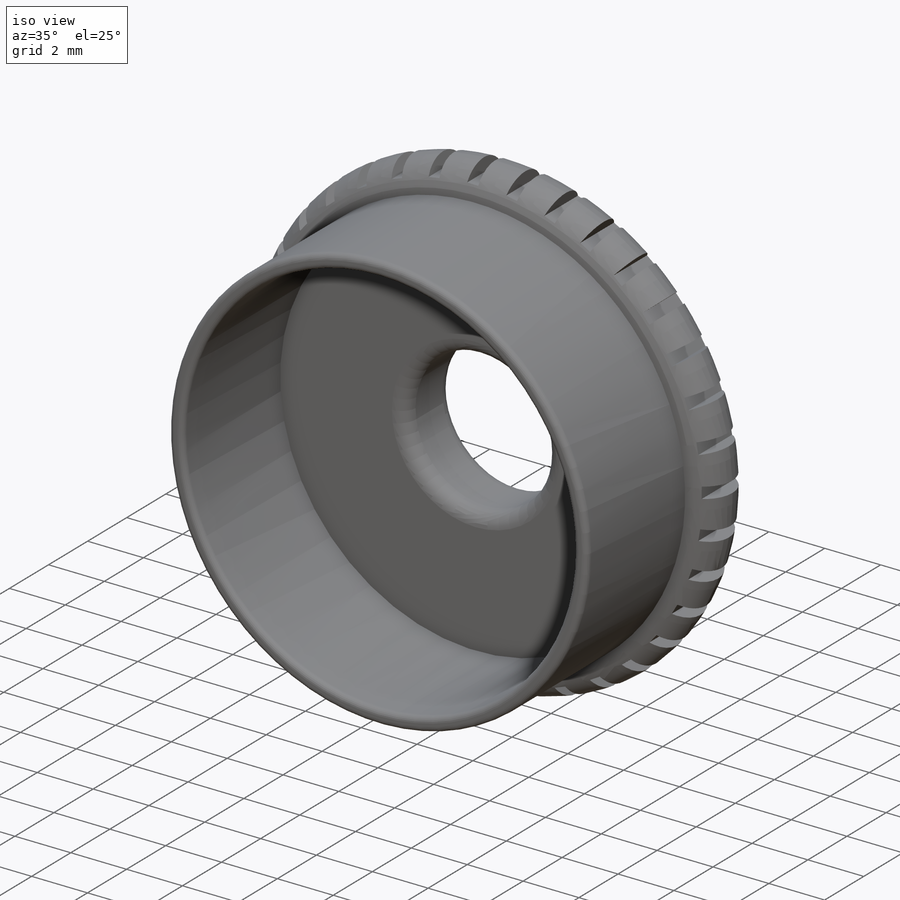
[diagram: iso view]
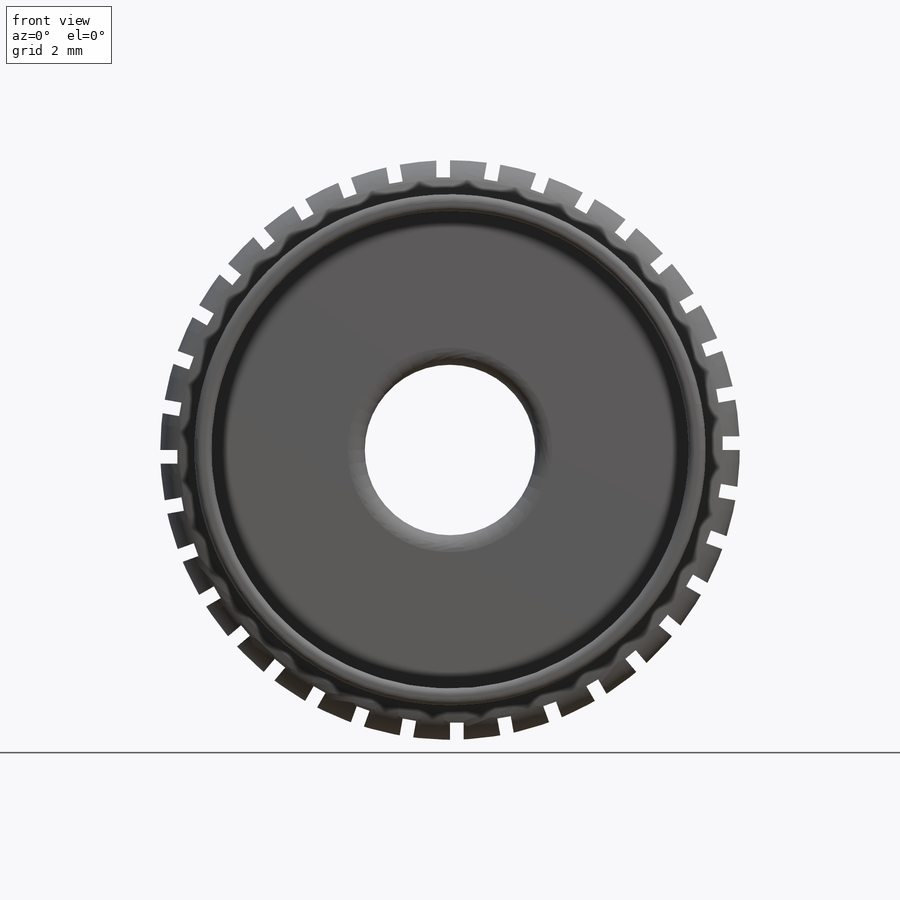
[diagram: front view]
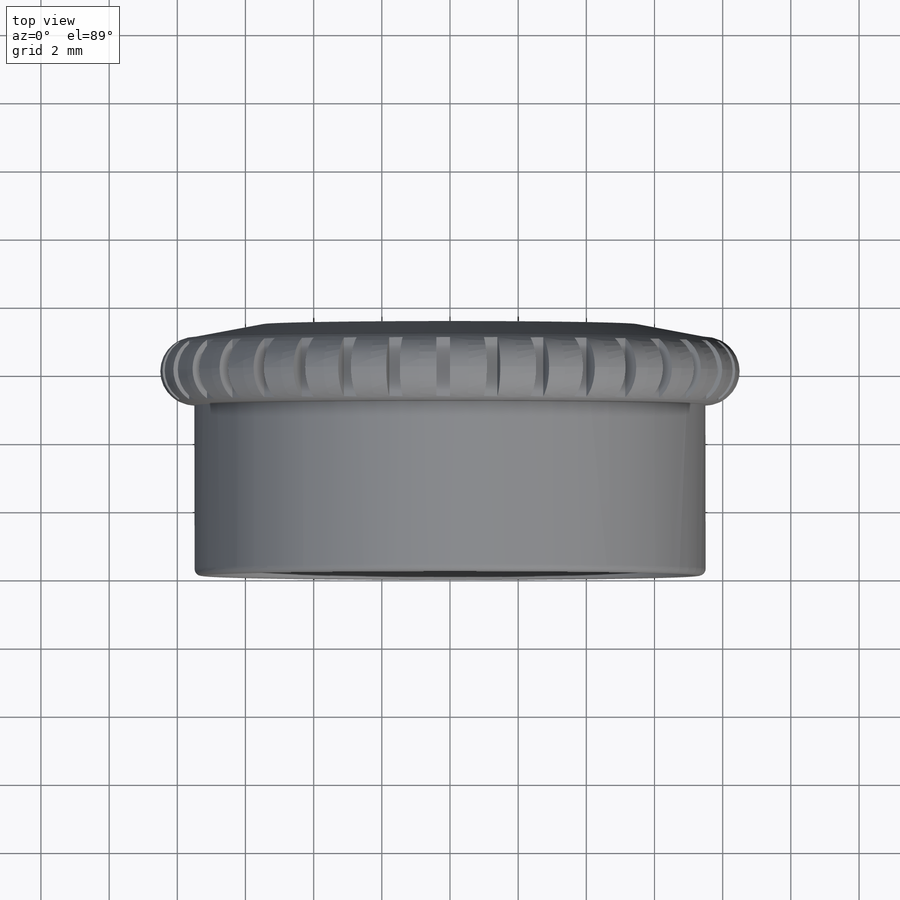
[diagram: top view]
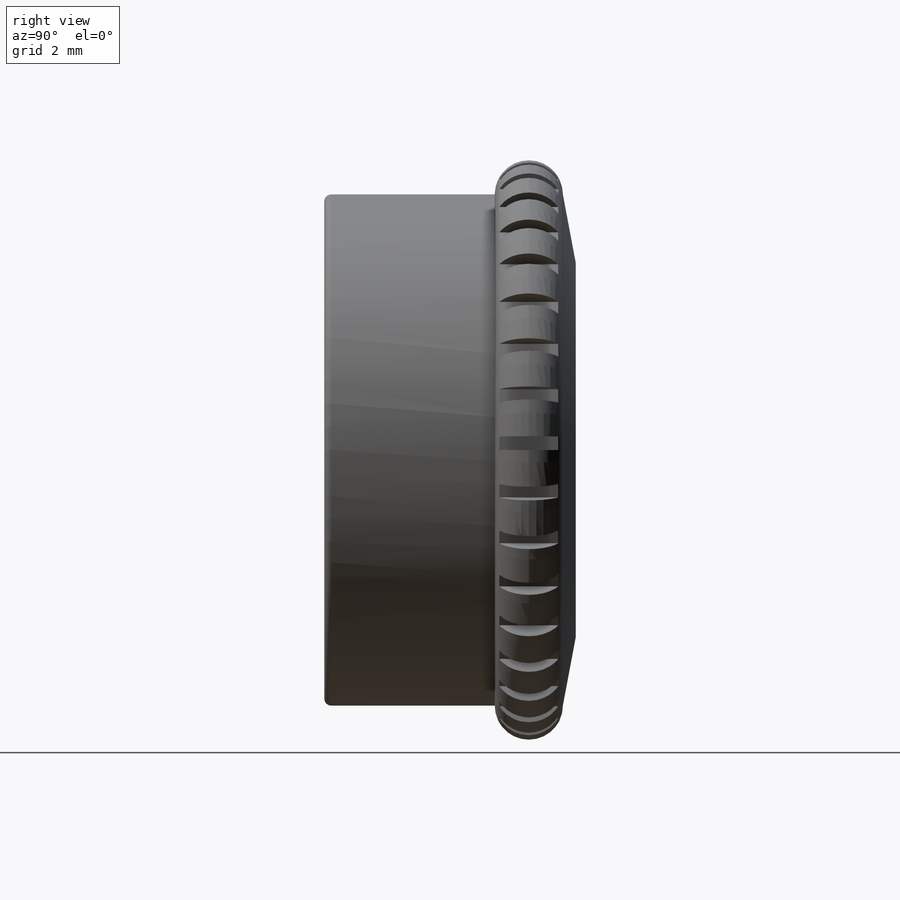
[diagram: right view]
SOLIDWORKS PART (.sldprt)
format: sldprt  version: not decoded by parser v0  size: 485,888 bytes
history: native  units: mm
features: sketch x5, plane x4, fillet x4, extrude x2, cut_extrude x2, material x1, thread x1, revolve x1, pattern_circular x1 (+9 scaffold rows collapsed)
feature tree (30):
  scaffold x9  (default folders/planes/origin — collapsed)
  material  "Mosaz"
  plane  "Přední rovina"
  plane  "Horní rovina"
  plane  "Pravá rovina"
  sketch  "Skica1"  dims[D1=15.0mm D2=14.0mm]
  extrude  "Přidat vysunutím1"  [1 undecoded]
  thread  "Kosmetický závit1"  Diameter=5mm  [1 undecoded]
  sketch  "Skica2"  dims[D1=17.0mm]
  extrude  "Přidat vysunutím2"  Depth=2mm
  fillet  "Zaoblit1"  Radius=1mm
  sketch  "Skica3"  dims[D1=5.5mm D2=2.0mm]
  revolve  "Rotovat1"  Angle=360deg
  sketch  "Skica4"  dims[D1=5.0mm]
  cut_extrude  "Odebrat vysunutím1"  [1 undecoded]
  fillet  "Zaoblit2"  Radius=0.2mm
  fillet  "Zaoblit3"  Radius=0.5mm
  fillet  "Zaoblit4"  Radius=0.5mm
  plane  "Rovina1"  Offset=8.5mm
  sketch  "Skica5"  dims[D1=2.0mm D2=0.4mm]
  cut_extrude  "Odebrat vysunutím2"  Depth=0.5mm
  pattern_circular  "Kruhové pole1"  Count=36  [1 undecoded]
decode coverage: 14 of 16 modeling features carry decoded parameters
note: 4 parameter values undecoded
note: suppression state not decoded; provenance and decode notes live in map.json
